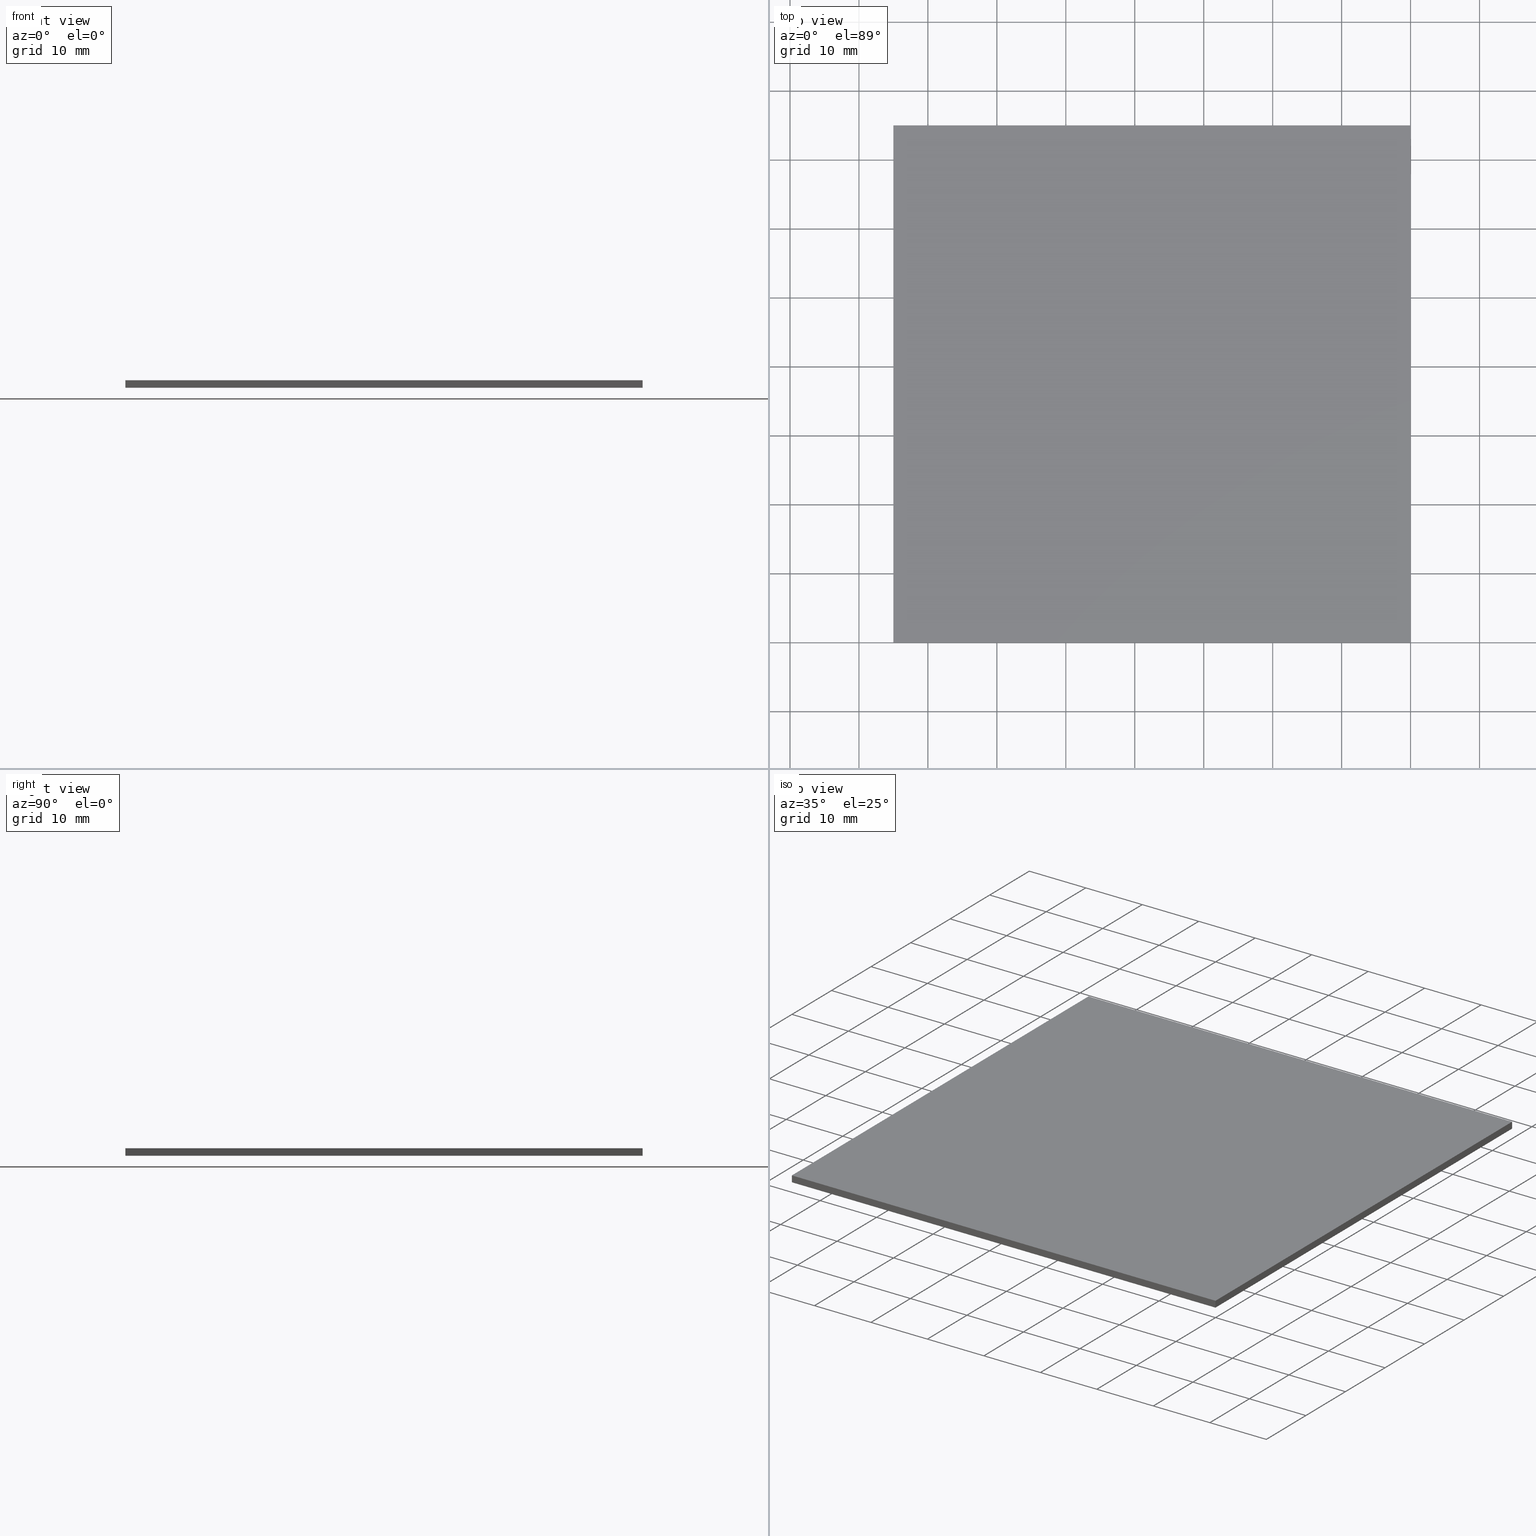
[diagram: canonical four-view strip — front | top / right | iso, engineering-drawing reading convention]
A machine part, canonical four-view strip (front | top / right | iso — engineering-drawing reading convention). The complete STEP part file that produces these views, byte-faithful:
ISO-10303-21;
HEADER;
FILE_DESCRIPTION (( 'STEP AP203' ),
    '1' );
FILE_NAME ('348513.STEP',
    '2019-07-31T08:05:54',
    ( '' ),
    ( '' ),
    'SwSTEP 2.0',
    'SolidWorks 2016',
    '' );
FILE_SCHEMA (( 'CONFIG_CONTROL_DESIGN' ));
ENDSEC;

DATA;
#1 = LOCAL_TIME ( 16, 5, 54.00000000000000000, #173 ) ;
#2 = VERTEX_POINT ( 'NONE', #134 ) ;
#3 = DIRECTION ( 'NONE',  ( -1.000000000000000000, -0.0000000000000000000, -0.0000000000000000000 ) ) ;
#4 = COORDINATED_UNIVERSAL_TIME_OFFSET ( 8, 0, .AHEAD. ) ;
#5 = VERTEX_POINT ( 'NONE', #63 ) ;
#6 = CC_DESIGN_PERSON_AND_ORGANIZATION_ASSIGNMENT ( #47, #137, ( #85 ) ) ;
#7 = EDGE_LOOP ( 'NONE', ( #39, #179, #112, #15 ) ) ;
#8 = DIRECTION ( 'NONE',  ( -1.000000000000000000, -9.251858538542971600E-017, 0.0000000000000000000 ) ) ;
#9 = CC_DESIGN_APPROVAL ( #115, ( #103 ) ) ;
#10 = ORIENTED_EDGE ( 'NONE', *, *, #257, .F. ) ;
#11 = DIRECTION ( 'NONE',  ( -0.0000000000000000000, -0.0000000000000000000, -1.000000000000000000 ) ) ;
#12 =( NAMED_UNIT ( * ) SI_UNIT ( $, .STERADIAN. ) SOLID_ANGLE_UNIT ( ) );
#13 = PERSON_AND_ORGANIZATION ( #29, #204 ) ;
#14 = DIRECTION ( 'NONE',  ( -0.0000000000000000000, -0.0000000000000000000, -1.000000000000000000 ) ) ;
#15 = ORIENTED_EDGE ( 'NONE', *, *, #154, .T. ) ;
#16 = LOCAL_TIME ( 16, 5, 54.00000000000000000, #234 ) ;
#17 = DIRECTION ( 'NONE',  ( -0.0000000000000000000, -0.0000000000000000000, -1.000000000000000000 ) ) ;
#18 = APPLICATION_CONTEXT ( 'configuration controlled 3d designs of mechanical parts and assemblies' ) ;
#19 = VERTEX_POINT ( 'NONE', #177 ) ;
#20 = PERSON_AND_ORGANIZATION_ROLE ( 'design_supplier' ) ;
#21 = PERSON_AND_ORGANIZATION_ROLE ( 'creator' ) ;
#22 = COORDINATED_UNIVERSAL_TIME_OFFSET ( 8, 0, .AHEAD. ) ;
#23 = DESIGN_CONTEXT ( 'detailed design', #285, 'design' ) ;
#24 = LINE ( 'NONE', #70, #287 ) ;
#25 = ORIENTED_EDGE ( 'NONE', *, *, #236, .F. ) ;
#26 = PRODUCT_RELATED_PRODUCT_CATEGORY ( 'detail', '', ( #85 ) ) ;
#27 = ADVANCED_FACE ( 'NONE', ( #126 ), #298, .F. ) ;
#28 = CALENDAR_DATE ( 2019, 31, 7 ) ;
#29 = PERSON ( 'δָ��', 'δָ��', 'δָ��', ('δָ��'), ('δָ��'), ('δָ��') ) ;
#30 = LINE ( 'NONE', #182, #145 ) ;
#31 = DIRECTION ( 'NONE',  ( 0.0000000000000000000, -0.0000000000000000000, 1.000000000000000000 ) ) ;
#32 = DIRECTION ( 'NONE',  ( 1.000000000000000000, 1.387778780781445700E-016, -0.0000000000000000000 ) ) ;
#33 = ORIENTED_EDGE ( 'NONE', *, *, #50, .F. ) ;
#34 = LINE ( 'NONE', #255, #239 ) ;
#35 = EDGE_CURVE ( 'NONE', #256, #296, #49, .T. ) ;
#36 = APPROVAL_DATE_TIME ( #41, #311 ) ;
#37 = APPLICATION_CONTEXT ( 'configuration controlled 3d designs of mechanical parts and assemblies' ) ;
#38 = ORIENTED_EDGE ( 'NONE', *, *, #35, .T. ) ;
#39 = ORIENTED_EDGE ( 'NONE', *, *, #236, .T. ) ;
#40 = CARTESIAN_POINT ( 'NONE',  ( -25.00000000000000000, 25.00000000000000000, 1.100000000000000100 ) ) ;
#41 = DATE_AND_TIME ( #297, #86 ) ;
#42 = CC_DESIGN_SECURITY_CLASSIFICATION ( #240, ( #136 ) ) ;
#43 = APPROVAL_STATUS ( 'not_yet_approved' ) ;
#44 = DATE_TIME_ROLE ( 'creation_date' ) ;
#45 = CC_DESIGN_PERSON_AND_ORGANIZATION_ASSIGNMENT ( #303, #46, ( #240 ) ) ;
#46 = PERSON_AND_ORGANIZATION_ROLE ( 'classification_officer' ) ;
#47 = PERSON_AND_ORGANIZATION ( #29, #204 ) ;
#48 = APPROVAL_DATE_TIME ( #175, #125 ) ;
#49 = LINE ( 'NONE', #60, #212 ) ;
#50 = EDGE_CURVE ( 'NONE', #160, #19, #274, .T. ) ;
#51 = LINE ( 'NONE', #263, #246 ) ;
#52 = DATE_AND_TIME ( #120, #119 ) ;
#53 = CC_DESIGN_APPROVAL ( #83, ( #206 ) ) ;
#54 = CARTESIAN_POINT ( 'NONE',  ( 49.99999999999999300, 25.00000000000000000, 1.100000000000000100 ) ) ;
#55 = AXIS2_PLACEMENT_3D ( 'NONE', #54, #8, #87 ) ;
#56 = APPROVAL_PERSON_ORGANIZATION ( #273, #115, #144 ) ;
#57 = CARTESIAN_POINT ( 'NONE',  ( -24.99999999999998900, -49.99999999999999300, 1.100000000000000100 ) ) ;
#58 = EDGE_LOOP ( 'NONE', ( #38, #93, #228, #167 ) ) ;
#59 = PERSON_AND_ORGANIZATION ( #29, #204 ) ;
#60 = CARTESIAN_POINT ( 'NONE',  ( 49.99999999999999300, 25.00000000000000000, 0.0000000000000000000 ) ) ;
#61 = CC_DESIGN_PERSON_AND_ORGANIZATION_ASSIGNMENT ( #13, #21, ( #206 ) ) ;
#62 = LINE ( 'NONE', #283, #76 ) ;
#63 = CARTESIAN_POINT ( 'NONE',  ( -24.99999999999998900, -49.99999999999999300, 0.0000000000000000000 ) ) ;
#64 = CC_DESIGN_DATE_AND_TIME_ASSIGNMENT ( #209, #267, ( #240 ) ) ;
#65 = FACE_OUTER_BOUND ( 'NONE', #58, .T. ) ;
#66 = CARTESIAN_POINT ( 'NONE',  ( 0.0000000000000000000, 0.0000000000000000000, 0.0000000000000000000 ) ) ;
#67 = DIRECTION ( 'NONE',  ( -0.0000000000000000000, 0.0000000000000000000, 1.000000000000000000 ) ) ;
#68 = DIRECTION ( 'NONE',  ( -0.0000000000000000000, -0.0000000000000000000, -1.000000000000000000 ) ) ;
#69 = COORDINATED_UNIVERSAL_TIME_OFFSET ( 8, 0, .AHEAD. ) ;
#70 = CARTESIAN_POINT ( 'NONE',  ( -25.00000000000000000, 25.00000000000000000, 0.0000000000000000000 ) ) ;
#71 = DIRECTION ( 'NONE',  ( 0.0000000000000000000, -1.000000000000000000, 0.0000000000000000000 ) ) ;
#72 = PERSON_AND_ORGANIZATION_ROLE ( 'design_owner' ) ;
#73 = APPROVAL_DATE_TIME ( #230, #83 ) ;
#74 = ADVANCED_FACE ( 'NONE', ( #264 ), #156, .F. ) ;
#75 = APPROVAL_STATUS ( 'not_yet_approved' ) ;
#76 = VECTOR ( 'NONE', #68, 1000.000000000000000 ) ;
#77 = CC_DESIGN_APPROVAL ( #174, ( #224 ) ) ;
#78 = PRODUCT_DEFINITION_SHAPE ( 'NONE', 'NONE',  #224 ) ;
#79 = SHAPE_DEFINITION_REPRESENTATION ( #219, #102 ) ;
#80 = CALENDAR_DATE ( 2019, 31, 7 ) ;
#81 = ORIENTED_EDGE ( 'NONE', *, *, #269, .T. ) ;
#82 =( GEOMETRIC_REPRESENTATION_CONTEXT ( 3 ) GLOBAL_UNCERTAINTY_ASSIGNED_CONTEXT ( ( #200 ) ) GLOBAL_UNIT_ASSIGNED_CONTEXT ( ( #286, #235, #12 ) ) REPRESENTATION_CONTEXT ( 'NONE', 'WORKASPACE' ) );
#83 = APPROVAL ( #193, 'δָ��' ) ;
#84 = CALENDAR_DATE ( 2019, 31, 7 ) ;
#85 = PRODUCT ( '348513', '348513', '', ( #241 ) ) ;
#86 = LOCAL_TIME ( 16, 5, 54.00000000000000000, #138 ) ;
#87 = DIRECTION ( 'NONE',  ( 9.251858538542971600E-017, -1.000000000000000000, 0.0000000000000000000 ) ) ;
#88 = CC_DESIGN_APPROVAL ( #311, ( #240 ) ) ;
#89 = DIRECTION ( 'NONE',  ( 1.000000000000000000, 0.0000000000000000000, 0.0000000000000000000 ) ) ;
#90 = PERSON_AND_ORGANIZATION ( #29, #204 ) ;
#91 = CARTESIAN_POINT ( 'NONE',  ( 50.00000000000000000, -49.99999999999999300, 1.100000000000000100 ) ) ;
#92 = DIRECTION ( 'NONE',  ( 0.0000000000000000000, 0.0000000000000000000, 1.000000000000000000 ) ) ;
#93 = ORIENTED_EDGE ( 'NONE', *, *, #194, .F. ) ;
#94 = AXIS2_PLACEMENT_3D ( 'NONE', #111, #130, #89 ) ;
#95 = CALENDAR_DATE ( 2019, 31, 7 ) ;
#96 = CARTESIAN_POINT ( 'NONE',  ( -24.99999999999998900, -49.99999999999999300, 0.0000000000000000000 ) ) ;
#97 = DIRECTION ( 'NONE',  ( 1.000000000000000000, 0.0000000000000000000, 0.0000000000000000000 ) ) ;
#98 = CALENDAR_DATE ( 2019, 31, 7 ) ;
#99 = SECURITY_CLASSIFICATION ( '', '', #190 ) ;
#100 = LOCAL_TIME ( 16, 5, 54.00000000000000000, #165 ) ;
#101 = DATE_TIME_ROLE ( 'creation_date' ) ;
#102 = ADVANCED_BREP_SHAPE_REPRESENTATION ( '348513', ( #195, #272 ), #82 ) ;
#103 = PRODUCT_DEFINITION_FORMATION_WITH_SPECIFIED_SOURCE ( '�κ�', '', #229, .NOT_KNOWN. ) ;
#104 = VECTOR ( 'NONE', #11, 1000.000000000000000 ) ;
#105 = EDGE_LOOP ( 'NONE', ( #275, #150, #249, #308 ) ) ;
#106 = CALENDAR_DATE ( 2019, 31, 7 ) ;
#107 = AXIS2_PLACEMENT_3D ( 'NONE', #40, #71, #215 ) ;
#108 = VECTOR ( 'NONE', #261, 1000.000000000000000 ) ;
#109 = CARTESIAN_POINT ( 'NONE',  ( -25.00000000000000000, 25.00000000000000000, 1.100000000000000100 ) ) ;
#110 = LINE ( 'NONE', #161, #314 ) ;
#111 = CARTESIAN_POINT ( 'NONE',  ( 0.0000000000000000000, 0.0000000000000000000, 1.100000000000000100 ) ) ;
#112 = ORIENTED_EDGE ( 'NONE', *, *, #211, .T. ) ;
#113 = CC_DESIGN_PERSON_AND_ORGANIZATION_ASSIGNMENT ( #250, #171, ( #99 ) ) ;
#114 = APPLICATION_PROTOCOL_DEFINITION ( 'international standard', 'config_control_design', 1994, #37 ) ;
#115 = APPROVAL ( #75, 'δָ��' ) ;
#116 = COORDINATED_UNIVERSAL_TIME_OFFSET ( 8, 0, .AHEAD. ) ;
#117 = APPLICATION_PROTOCOL_DEFINITION ( 'international standard', 'config_control_design', 1994, #18 ) ;
#118 = APPROVAL_STATUS ( 'not_yet_approved' ) ;
#119 = LOCAL_TIME ( 16, 5, 54.00000000000000000, #22 ) ;
#120 = CALENDAR_DATE ( 2019, 31, 7 ) ;
#121 = ORIENTED_EDGE ( 'NONE', *, *, #184, .T. ) ;
#122 = FACE_OUTER_BOUND ( 'NONE', #7, .T. ) ;
#123 = ORIENTED_EDGE ( 'NONE', *, *, #315, .T. ) ;
#124 = ADVANCED_FACE ( 'NONE', ( #65 ), #202, .F. ) ;
#125 = APPROVAL ( #118, 'δָ��' ) ;
#126 = FACE_OUTER_BOUND ( 'NONE', #313, .T. ) ;
#127 = VECTOR ( 'NONE', #97, 1000.000000000000000 ) ;
#128 = ADVANCED_FACE ( 'NONE', ( #122 ), #132, .T. ) ;
#129 = CC_DESIGN_APPROVAL ( #125, ( #99 ) ) ;
#130 = DIRECTION ( 'NONE',  ( -0.0000000000000000000, 0.0000000000000000000, 1.000000000000000000 ) ) ;
#131 = DESIGN_CONTEXT ( 'detailed design', #18, 'design' ) ;
#132 = PLANE ( 'NONE',  #94 ) ;
#133 = APPROVAL_PERSON_ORGANIZATION ( #292, #311, #288 ) ;
#134 = CARTESIAN_POINT ( 'NONE',  ( -25.00000000000000000, 25.00000000000000000, 0.0000000000000000000 ) ) ;
#135 = CARTESIAN_POINT ( 'NONE',  ( 0.0000000000000000000, 0.0000000000000000000, 0.0000000000000000000 ) ) ;
#136 = PRODUCT_DEFINITION_FORMATION_WITH_SPECIFIED_SOURCE ( '�κ�', '', #85, .NOT_KNOWN. ) ;
#137 = PERSON_AND_ORGANIZATION_ROLE ( 'design_owner' ) ;
#138 = COORDINATED_UNIVERSAL_TIME_OFFSET ( 8, 0, .AHEAD. ) ;
#139 = DIRECTION ( 'NONE',  ( 1.000000000000000000, 0.0000000000000000000, 0.0000000000000000000 ) ) ;
#140 = VECTOR ( 'NONE', #299, 1000.000000000000000 ) ;
#141 = APPROVAL_STATUS ( 'not_yet_approved' ) ;
#142 = CARTESIAN_POINT ( 'NONE',  ( 49.99999999999999300, 25.00000000000000000, 0.0000000000000000000 ) ) ;
#143 = DATE_AND_TIME ( #84, #208 ) ;
#144 = APPROVAL_ROLE ( '' ) ;
#145 = VECTOR ( 'NONE', #3, 1000.000000000000000 ) ;
#146 = CC_DESIGN_SECURITY_CLASSIFICATION ( #99, ( #103 ) ) ;
#147 = PERSON_AND_ORGANIZATION_ROLE ( 'creator' ) ;
#148 = DATE_AND_TIME ( #253, #262 ) ;
#149 = CC_DESIGN_DATE_AND_TIME_ASSIGNMENT ( #143, #44, ( #224 ) ) ;
#150 = ORIENTED_EDGE ( 'NONE', *, *, #184, .F. ) ;
#151 = VERTEX_POINT ( 'NONE', #109 ) ;
#152 = CC_DESIGN_PERSON_AND_ORGANIZATION_ASSIGNMENT ( #284, #147, ( #136 ) ) ;
#153 = LOCAL_TIME ( 16, 5, 54.00000000000000000, #116 ) ;
#154 = EDGE_CURVE ( 'NONE', #225, #151, #30, .T. ) ;
#155 = CARTESIAN_POINT ( 'NONE',  ( -25.00000000000000000, 25.00000000000000000, 1.100000000000000100 ) ) ;
#156 = PLANE ( 'NONE',  #305 ) ;
#157 = EDGE_LOOP ( 'NONE', ( #301, #289, #266, #279 ) ) ;
#158 = APPLICATION_CONTEXT ( 'configuration controlled 3d designs of mechanical parts and assemblies' ) ;
#159 = PERSON_AND_ORGANIZATION ( #29, #204 ) ;
#160 = VERTEX_POINT ( 'NONE', #57 ) ;
#161 = CARTESIAN_POINT ( 'NONE',  ( 49.99999999999999300, 25.00000000000000000, 1.100000000000000100 ) ) ;
#162 = EDGE_CURVE ( 'NONE', #296, #2, #34, .T. ) ;
#163 = PERSON_AND_ORGANIZATION_ROLE ( 'creator' ) ;
#164 = CC_DESIGN_PERSON_AND_ORGANIZATION_ASSIGNMENT ( #183, #166, ( #136 ) ) ;
#165 = COORDINATED_UNIVERSAL_TIME_OFFSET ( 8, 0, .AHEAD. ) ;
#166 = PERSON_AND_ORGANIZATION_ROLE ( 'design_supplier' ) ;
#167 = ORIENTED_EDGE ( 'NONE', *, *, #168, .T. ) ;
#168 = EDGE_CURVE ( 'NONE', #19, #256, #203, .T. ) ;
#169 = LINE ( 'NONE', #307, #221 ) ;
#170 = MECHANICAL_CONTEXT ( 'NONE', #158, 'mechanical' ) ;
#171 = PERSON_AND_ORGANIZATION_ROLE ( 'classification_officer' ) ;
#172 = CC_DESIGN_APPROVAL ( #291, ( #136 ) ) ;
#173 = COORDINATED_UNIVERSAL_TIME_OFFSET ( 8, 0, .AHEAD. ) ;
#174 = APPROVAL ( #141, 'δָ��' ) ;
#175 = DATE_AND_TIME ( #95, #153 ) ;
#176 = CARTESIAN_POINT ( 'NONE',  ( -24.99999999999998900, -49.99999999999999300, 1.100000000000000100 ) ) ;
#177 = CARTESIAN_POINT ( 'NONE',  ( 50.00000000000000000, -49.99999999999999300, 1.100000000000000100 ) ) ;
#178 = APPROVAL_PERSON_ORGANIZATION ( #223, #125, #222 ) ;
#179 = ORIENTED_EDGE ( 'NONE', *, *, #50, .T. ) ;
#180 = ORIENTED_EDGE ( 'NONE', *, *, #257, .T. ) ;
#181 = APPROVAL_DATE_TIME ( #312, #174 ) ;
#182 = CARTESIAN_POINT ( 'NONE',  ( -25.00000000000000000, 25.00000000000000000, 1.100000000000000100 ) ) ;
#183 = PERSON_AND_ORGANIZATION ( #29, #204 ) ;
#184 = EDGE_CURVE ( 'NONE', #151, #2, #51, .T. ) ;
#185 = DIRECTION ( 'NONE',  ( -9.251858538542971600E-017, 1.000000000000000000, -0.0000000000000000000 ) ) ;
#186 = AXIS2_PLACEMENT_3D ( 'NONE', #244, #67, #139 ) ;
#187 = APPLICATION_PROTOCOL_DEFINITION ( 'international standard', 'config_control_design', 1994, #285 ) ;
#188 = LOCAL_TIME ( 16, 5, 54.00000000000000000, #69 ) ;
#189 = PLANE ( 'NONE',  #107 ) ;
#190 = SECURITY_CLASSIFICATION_LEVEL ( 'unclassified' ) ;
#191 = PERSON_AND_ORGANIZATION_ROLE ( 'creator' ) ;
#192 = PRODUCT_RELATED_PRODUCT_CATEGORY ( 'detail', '', ( #229 ) ) ;
#193 = APPROVAL_STATUS ( 'not_yet_approved' ) ;
#194 = EDGE_CURVE ( 'NONE', #225, #296, #169, .T. ) ;
#195 = MANIFOLD_SOLID_BREP ( '͹̨-����1', #278 ) ;
#196 = LINE ( 'NONE', #96, #127 ) ;
#197 = AXIS2_PLACEMENT_3D ( 'NONE', #135, #238, #304 ) ;
#198 = PERSON_AND_ORGANIZATION ( #29, #204 ) ;
#199 = EDGE_LOOP ( 'NONE', ( #123, #10, #25, #121 ) ) ;
#200 = UNCERTAINTY_MEASURE_WITH_UNIT (LENGTH_MEASURE( 1.000000000000000100E-005 ), #286, 'distance_accuracy_value', 'NONE');
#201 = ORIENTED_EDGE ( 'NONE', *, *, #168, .F. ) ;
#202 = PLANE ( 'NONE',  #55 ) ;
#203 = LINE ( 'NONE', #91, #104 ) ;
#204 = ORGANIZATION ( 'δָ��', 'δָ��', '' ) ;
#205 = FACE_OUTER_BOUND ( 'NONE', #105, .T. ) ;
#206 = PRODUCT_DEFINITION ( 'δ֪', '', #103, #131 ) ;
#207 = PLANE ( 'NONE',  #186 ) ;
#208 = LOCAL_TIME ( 16, 5, 54.00000000000000000, #268 ) ;
#209 = DATE_AND_TIME ( #106, #100 ) ;
#210 = APPROVAL_ROLE ( '' ) ;
#211 = EDGE_CURVE ( 'NONE', #19, #225, #110, .T. ) ;
#212 = VECTOR ( 'NONE', #231, 1000.000000000000000 ) ;
#213 = CARTESIAN_POINT ( 'NONE',  ( -25.00000000000000000, 25.00000000000000000, 1.100000000000000100 ) ) ;
#214 = CC_DESIGN_PERSON_AND_ORGANIZATION_ASSIGNMENT ( #198, #72, ( #229 ) ) ;
#215 = DIRECTION ( 'NONE',  ( 0.0000000000000000000, -0.0000000000000000000, -1.000000000000000000 ) ) ;
#216 = APPLICATION_PROTOCOL_DEFINITION ( 'international standard', 'config_control_design', 1994, #158 ) ;
#217 = SECURITY_CLASSIFICATION_LEVEL ( 'unclassified' ) ;
#218 = LOCAL_TIME ( 16, 5, 54.00000000000000000, #226 ) ;
#219 = PRODUCT_DEFINITION_SHAPE ( 'NONE', 'NONE',  #206 ) ;
#220 = APPROVAL_STATUS ( 'not_yet_approved' ) ;
#221 = VECTOR ( 'NONE', #14, 1000.000000000000000 ) ;
#222 = APPROVAL_ROLE ( '' ) ;
#223 = PERSON_AND_ORGANIZATION ( #29, #204 ) ;
#224 = PRODUCT_DEFINITION ( 'δ֪', '', #136, #23 ) ;
#225 = VERTEX_POINT ( 'NONE', #260 ) ;
#226 = COORDINATED_UNIVERSAL_TIME_OFFSET ( 8, 0, .AHEAD. ) ;
#227 = ADVANCED_FACE ( 'NONE', ( #205 ), #189, .F. ) ;
#228 = ORIENTED_EDGE ( 'NONE', *, *, #211, .F. ) ;
#229 = PRODUCT ( '348513', '348513', '', ( #170 ) ) ;
#230 = DATE_AND_TIME ( #28, #188 ) ;
#231 = DIRECTION ( 'NONE',  ( -9.251858538542971600E-017, 1.000000000000000000, -0.0000000000000000000 ) ) ;
#232 = DIRECTION ( 'NONE',  ( -1.000000000000000000, -0.0000000000000000000, -0.0000000000000000000 ) ) ;
#233 = DIRECTION ( 'NONE',  ( -1.387778780781445700E-016, 1.000000000000000000, 0.0000000000000000000 ) ) ;
#234 = COORDINATED_UNIVERSAL_TIME_OFFSET ( 8, 0, .AHEAD. ) ;
#235 =( NAMED_UNIT ( * ) PLANE_ANGLE_UNIT ( ) SI_UNIT ( $, .RADIAN. ) );
#236 = EDGE_CURVE ( 'NONE', #151, #160, #295, .T. ) ;
#237 = DATE_AND_TIME ( #282, #1 ) ;
#238 = DIRECTION ( 'NONE',  ( 0.0000000000000000000, 0.0000000000000000000, 1.000000000000000000 ) ) ;
#239 = VECTOR ( 'NONE', #232, 1000.000000000000000 ) ;
#240 = SECURITY_CLASSIFICATION ( '', '', #217 ) ;
#241 = MECHANICAL_CONTEXT ( 'NONE', #37, 'mechanical' ) ;
#242 = DIRECTION ( 'NONE',  ( 1.387778780781445700E-016, -1.000000000000000000, 0.0000000000000000000 ) ) ;
#243 = PERSON_AND_ORGANIZATION ( #29, #204 ) ;
#244 = CARTESIAN_POINT ( 'NONE',  ( 0.0000000000000000000, 0.0000000000000000000, 0.0000000000000000000 ) ) ;
#245 = APPROVAL_ROLE ( '' ) ;
#246 = VECTOR ( 'NONE', #17, 1000.000000000000000 ) ;
#247 = CC_DESIGN_PERSON_AND_ORGANIZATION_ASSIGNMENT ( #59, #163, ( #224 ) ) ;
#248 = APPROVAL_DATE_TIME ( #52, #115 ) ;
#249 = ORIENTED_EDGE ( 'NONE', *, *, #154, .F. ) ;
#250 = PERSON_AND_ORGANIZATION ( #29, #204 ) ;
#251 = PERSON_AND_ORGANIZATION ( #29, #204 ) ;
#252 = APPROVAL_PERSON_ORGANIZATION ( #251, #291, #290 ) ;
#253 = CALENDAR_DATE ( 2019, 31, 7 ) ;
#254 = CC_DESIGN_PERSON_AND_ORGANIZATION_ASSIGNMENT ( #159, #191, ( #103 ) ) ;
#255 = CARTESIAN_POINT ( 'NONE',  ( -25.00000000000000000, 25.00000000000000000, 0.0000000000000000000 ) ) ;
#256 = VERTEX_POINT ( 'NONE', #281 ) ;
#257 = EDGE_CURVE ( 'NONE', #160, #5, #62, .T. ) ;
#258 = CC_DESIGN_PERSON_AND_ORGANIZATION_ASSIGNMENT ( #306, #20, ( #103 ) ) ;
#259 = DIRECTION ( 'NONE',  ( 1.000000000000000000, 0.0000000000000000000, 0.0000000000000000000 ) ) ;
#260 = CARTESIAN_POINT ( 'NONE',  ( 49.99999999999999300, 25.00000000000000000, 1.100000000000000100 ) ) ;
#261 = DIRECTION ( 'NONE',  ( 1.387778780781445700E-016, -1.000000000000000000, 0.0000000000000000000 ) ) ;
#262 = LOCAL_TIME ( 16, 5, 54.00000000000000000, #4 ) ;
#263 = CARTESIAN_POINT ( 'NONE',  ( -25.00000000000000000, 25.00000000000000000, 1.100000000000000100 ) ) ;
#264 = FACE_OUTER_BOUND ( 'NONE', #199, .T. ) ;
#265 = ADVANCED_FACE ( 'NONE', ( #271 ), #207, .F. ) ;
#266 = ORIENTED_EDGE ( 'NONE', *, *, #35, .F. ) ;
#267 = DATE_TIME_ROLE ( 'classification_date' ) ;
#268 = COORDINATED_UNIVERSAL_TIME_OFFSET ( 8, 0, .AHEAD. ) ;
#269 = EDGE_CURVE ( 'NONE', #5, #256, #196, .T. ) ;
#270 = DATE_TIME_ROLE ( 'classification_date' ) ;
#271 = FACE_OUTER_BOUND ( 'NONE', #157, .T. ) ;
#272 = AXIS2_PLACEMENT_3D ( 'NONE', #66, #92, #259 ) ;
#273 = PERSON_AND_ORGANIZATION ( #29, #204 ) ;
#274 = LINE ( 'NONE', #176, #140 ) ;
#275 = ORIENTED_EDGE ( 'NONE', *, *, #162, .T. ) ;
#276 = CC_DESIGN_DATE_AND_TIME_ASSIGNMENT ( #237, #270, ( #99 ) ) ;
#277 = APPROVAL_PERSON_ORGANIZATION ( #243, #83, #245 ) ;
#278 = CLOSED_SHELL ( 'NONE', ( #74, #27, #124, #227, #128, #265 ) ) ;
#279 = ORIENTED_EDGE ( 'NONE', *, *, #269, .F. ) ;
#280 = CARTESIAN_POINT ( 'NONE',  ( -24.99999999999998900, -49.99999999999999300, 1.100000000000000100 ) ) ;
#281 = CARTESIAN_POINT ( 'NONE',  ( 50.00000000000000000, -49.99999999999999300, 0.0000000000000000000 ) ) ;
#282 = CALENDAR_DATE ( 2019, 31, 7 ) ;
#283 = CARTESIAN_POINT ( 'NONE',  ( -24.99999999999998900, -49.99999999999999300, 1.100000000000000100 ) ) ;
#284 = PERSON_AND_ORGANIZATION ( #29, #204 ) ;
#285 = APPLICATION_CONTEXT ( 'configuration controlled 3d designs of mechanical parts and assemblies' ) ;
#286 =( LENGTH_UNIT ( ) NAMED_UNIT ( * ) SI_UNIT ( .MILLI., .METRE. ) );
#287 = VECTOR ( 'NONE', #242, 1000.000000000000000 ) ;
#288 = APPROVAL_ROLE ( '' ) ;
#289 = ORIENTED_EDGE ( 'NONE', *, *, #162, .F. ) ;
#290 = APPROVAL_ROLE ( '' ) ;
#291 = APPROVAL ( #43, 'δָ��' ) ;
#292 = PERSON_AND_ORGANIZATION ( #29, #204 ) ;
#293 = APPROVAL_DATE_TIME ( #300, #291 ) ;
#294 = AXIS2_PLACEMENT_3D ( 'NONE', #280, #302, #31 ) ;
#295 = LINE ( 'NONE', #213, #108 ) ;
#296 = VERTEX_POINT ( 'NONE', #142 ) ;
#297 = CALENDAR_DATE ( 2019, 31, 7 ) ;
#298 = PLANE ( 'NONE',  #294 ) ;
#299 = DIRECTION ( 'NONE',  ( 1.000000000000000000, 0.0000000000000000000, 0.0000000000000000000 ) ) ;
#300 = DATE_AND_TIME ( #80, #16 ) ;
#301 = ORIENTED_EDGE ( 'NONE', *, *, #315, .F. ) ;
#302 = DIRECTION ( 'NONE',  ( 0.0000000000000000000, 1.000000000000000000, 0.0000000000000000000 ) ) ;
#303 = PERSON_AND_ORGANIZATION ( #29, #204 ) ;
#304 = DIRECTION ( 'NONE',  ( 1.000000000000000000, 0.0000000000000000000, 0.0000000000000000000 ) ) ;
#305 = AXIS2_PLACEMENT_3D ( 'NONE', #155, #32, #233 ) ;
#306 = PERSON_AND_ORGANIZATION ( #29, #204 ) ;
#307 = CARTESIAN_POINT ( 'NONE',  ( 49.99999999999999300, 25.00000000000000000, 1.100000000000000100 ) ) ;
#308 = ORIENTED_EDGE ( 'NONE', *, *, #194, .T. ) ;
#309 = CC_DESIGN_DATE_AND_TIME_ASSIGNMENT ( #148, #101, ( #206 ) ) ;
#310 = APPROVAL_PERSON_ORGANIZATION ( #90, #174, #210 ) ;
#311 = APPROVAL ( #220, 'δָ��' ) ;
#312 = DATE_AND_TIME ( #98, #218 ) ;
#313 = EDGE_LOOP ( 'NONE', ( #81, #201, #33, #180 ) ) ;
#314 = VECTOR ( 'NONE', #185, 1000.000000000000000 ) ;
#315 = EDGE_CURVE ( 'NONE', #2, #5, #24, .T. ) ;
ENDSEC;
END-ISO-10303-21;
